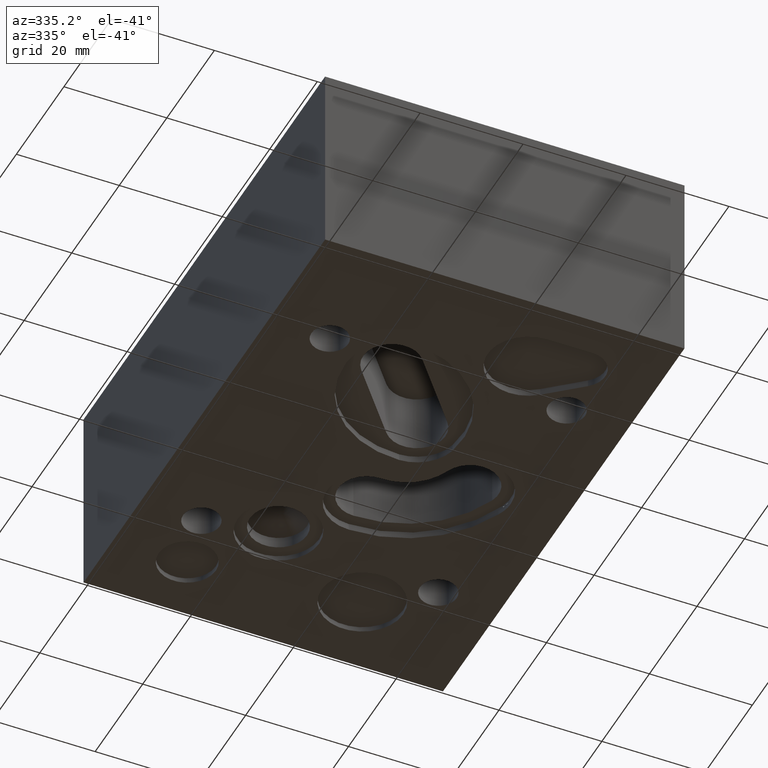
[diagram: clean part render]
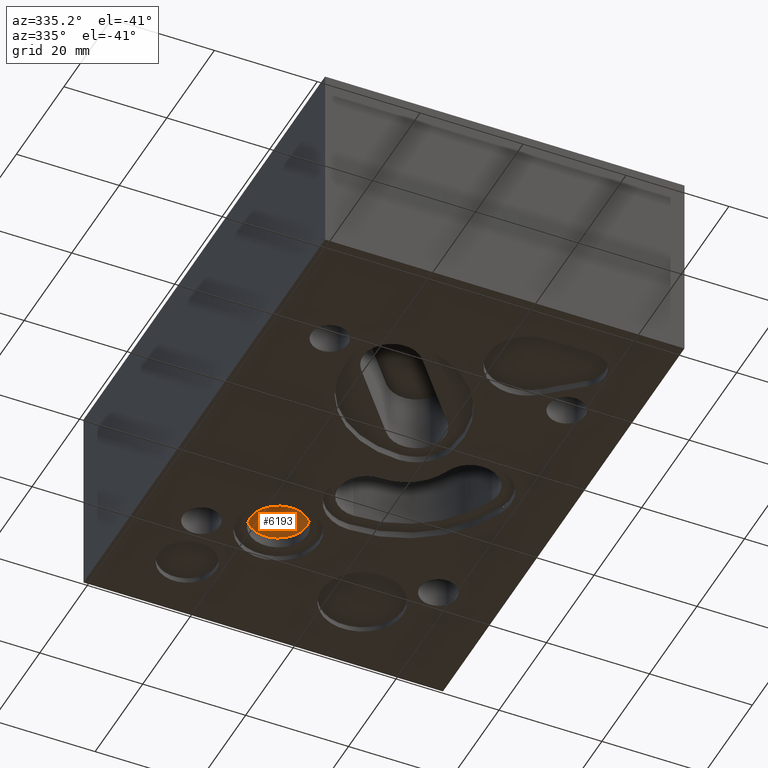
[diagram: same view with one face highlighted and labeled with its STEP entity id]
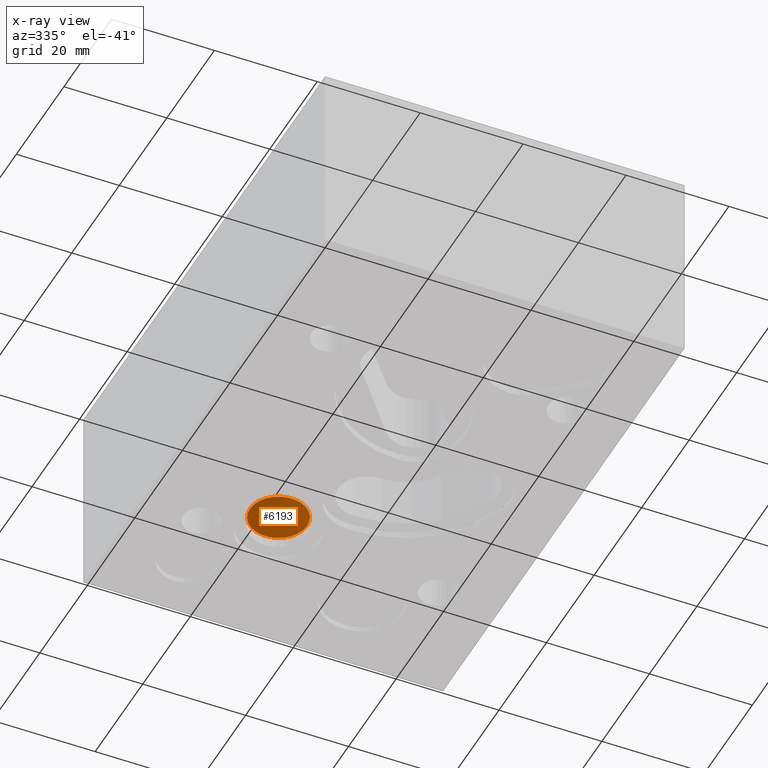
[diagram: x-ray of the same camera — body ghosted, the highlighted face saturated]
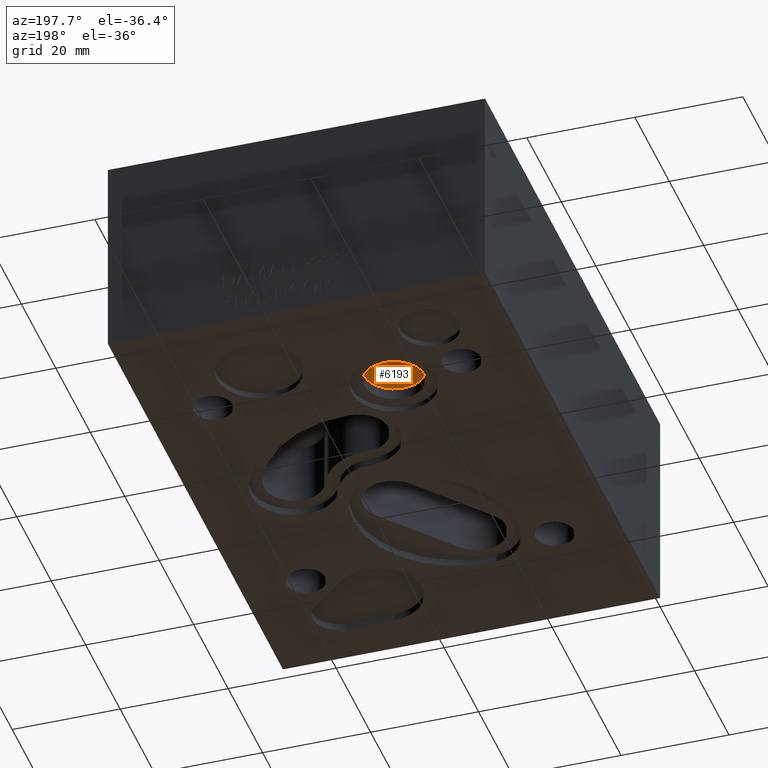
[diagram: same view with one face highlighted and labeled with its STEP entity id]
A machine part, auxiliary view. The second image highlights one B-rep face of the part: STEP entity #6193.
The next image is the same camera in x-ray: the body ghosted, the highlighted face saturated — about 0% of this face is hidden behind the body in this view.
A second angle (auxiliary view) of the same face is appended — the face is thin or edge-on in the first view.
In plain terms, the highlighted conical surface has half-angle 60 deg.
Its self-contained STEP definition (entity closure, byte-faithful):
#15=CONICAL_SURFACE('',#6510,0.1095,1.04719755219355);
#66=CIRCLE('',#6511,0.219);
#67=CIRCLE('',#6512,0.219);
#532=FACE_OUTER_BOUND('',#894,.T.);
#894=EDGE_LOOP('',(#5579,#5580,#5581,#5582));
#1569=LINE('',#10850,#2235);
#2235=VECTOR('',#7755,0.1095);
#2987=VERTEX_POINT('',#10848);
#2988=VERTEX_POINT('',#10849);
#2989=VERTEX_POINT('',#10851);
#3863=EDGE_CURVE('',#2987,#2988,#1569,.T.);
#3864=EDGE_CURVE('',#2988,#2989,#66,.T.);
#3865=EDGE_CURVE('',#2989,#2988,#67,.T.);
#5579=ORIENTED_EDGE('',*,*,#3863,.T.);
#5580=ORIENTED_EDGE('',*,*,#3864,.T.);
#5581=ORIENTED_EDGE('',*,*,#3865,.T.);
#5582=ORIENTED_EDGE('',*,*,#3863,.F.);
#6193=ADVANCED_FACE('',(#532),#15,.F.);
#6510=AXIS2_PLACEMENT_3D('',#10847,#7753,#7754);
#6511=AXIS2_PLACEMENT_3D('',#10852,#7756,#7757);
#6512=AXIS2_PLACEMENT_3D('',#10853,#7758,#7759);
#7753=DIRECTION('center_axis',(0.,0.,-1.));
#7754=DIRECTION('ref_axis',(1.,0.,0.));
#7755=DIRECTION('',(-0.866025404282916,1.06057523933537E-16,-0.499999999136612));
#7756=DIRECTION('center_axis',(0.,0.,-1.));
#7757=DIRECTION('ref_axis',(1.,0.,0.));
#7758=DIRECTION('center_axis',(0.,0.,-1.));
#7759=DIRECTION('ref_axis',(1.,0.,0.));
#10847=CARTESIAN_POINT('Origin',(1.00075,2.93775,0.189659562992126));
#10848=CARTESIAN_POINT('',(1.00075,2.93775,0.252879417322835));
#10849=CARTESIAN_POINT('',(0.78175,2.93775,0.126439708661417));
#10850=CARTESIAN_POINT('',(0.89125,2.93775,0.189659562992126));
#10851=CARTESIAN_POINT('',(1.21975,2.93775,0.126439708661417));
#10852=CARTESIAN_POINT('Origin',(1.00075,2.93775,0.126439708661417));
#10853=CARTESIAN_POINT('Origin',(1.00075,2.93775,0.126439708661417));